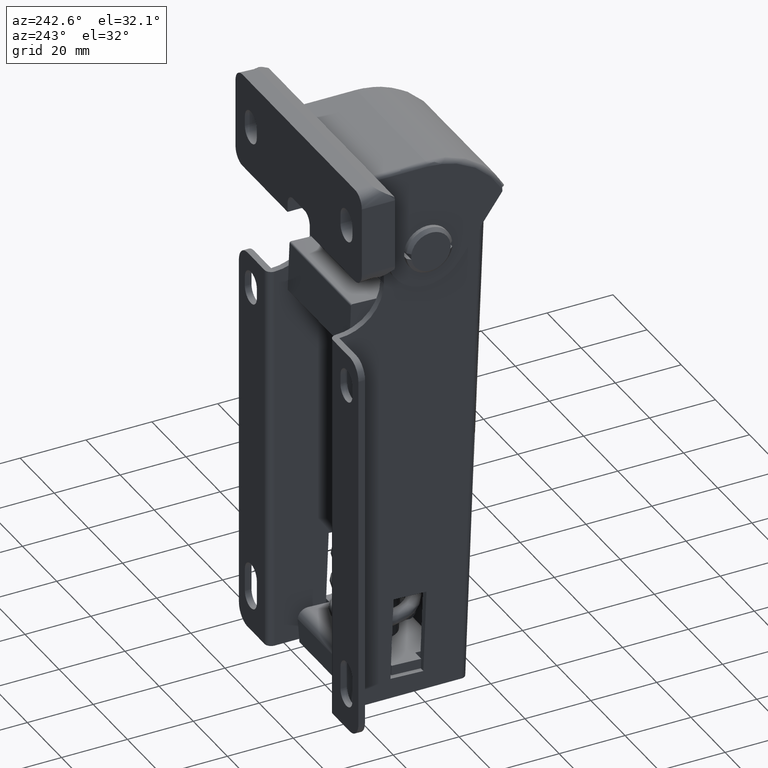
[diagram: clean part render]
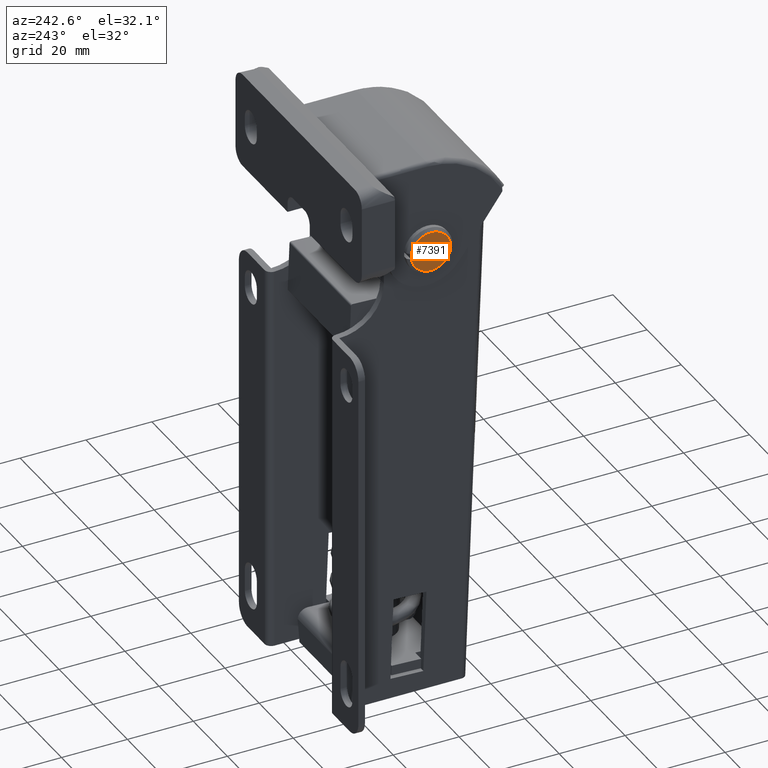
[diagram: same view with one face highlighted and labeled with its STEP entity id]
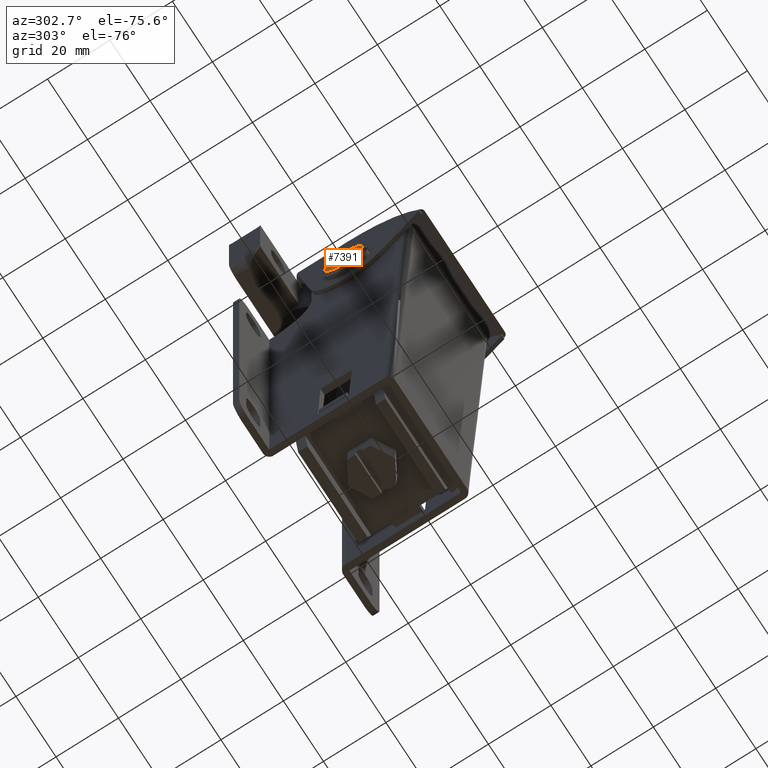
[diagram: same view with one face highlighted and labeled with its STEP entity id]
A machine part, auxiliary view. The second image highlights one B-rep face of the part: STEP entity #7391.
A second angle (auxiliary view) of the same face is appended — the face is thin or edge-on in the first view.
In plain terms, the highlighted face is a freeform B-spline surface patch.
Its self-contained STEP definition (entity closure, byte-faithful):
#7109=CARTESIAN_POINT('',(-23.500000000000000,-5.939462704611561,0.850005999999894));
#7110=VERTEX_POINT('',#7109);
#7147=CARTESIAN_POINT('',(-23.500000000000000,-5.939461053482820,-0.849975999999913));
#7148=VERTEX_POINT('',#7147);
#7210=CARTESIAN_POINT('',(-23.500000000000000,-5.939462704611561,0.850005999999894));
#7211=CARTESIAN_POINT('',(-23.499999999999996,-6.061102909468464,0.000015298664663));
#7212=CARTESIAN_POINT('',(-23.500000000000000,-5.939461053482820,-0.849975999999913));
#7220=(BOUNDED_CURVE()B_SPLINE_CURVE(2,(#7210,#7211,#7212),.UNSPECIFIED.,.F.,.U.)CURVE()GEOMETRIC_REPRESENTATION_ITEM()QUASI_UNIFORM_CURVE()RATIONAL_B_SPLINE_CURVE((1.0,0.989914623021119,1.0))REPRESENTATION_ITEM(''));
#7221=EDGE_CURVE('',#7110,#7148,#7220,.T.);
#7232=CARTESIAN_POINT('',(-23.500000000000000,5.939505946517170,-0.849975999999913));
#7233=VERTEX_POINT('',#7232);
#7290=CARTESIAN_POINT('',(-23.500000000000000,5.939505946517170,0.850005999999894));
#7291=VERTEX_POINT('',#7290);
#7335=CARTESIAN_POINT('',(-23.500000000000000,5.939505946517170,0.850005999999894));
#7336=CARTESIAN_POINT('',(-23.499999999999996,6.061147050964051,0.000015301035997));
#7337=CARTESIAN_POINT('',(-23.500000000000000,5.939505946517170,-0.849975999999913));
#7345=(BOUNDED_CURVE()B_SPLINE_CURVE(2,(#7335,#7336,#7337),.UNSPECIFIED.,.F.,.U.)CURVE()GEOMETRIC_REPRESENTATION_ITEM()QUASI_UNIFORM_CURVE()RATIONAL_B_SPLINE_CURVE((1.0,0.989914616914846,1.0))REPRESENTATION_ITEM(''));
#7346=EDGE_CURVE('',#7291,#7233,#7345,.T.);
#7352=CARTESIAN_POINT('',(-23.500000000000000,-6.599373849987222,-6.599399018591900));
#7353=CARTESIAN_POINT('',(-23.500000000000000,-6.599373849987222,6.599400058283703));
#7354=CARTESIAN_POINT('',(-23.500000000000000,6.599418168671624,-6.599399018591900));
#7355=CARTESIAN_POINT('',(-23.500000000000000,6.599418168671624,6.599400058283703));
#7356=B_SPLINE_SURFACE_WITH_KNOTS('',1,1,((#7352,#7354),(#7353,#7355)),.UNSPECIFIED.,.F.,.F.,.U.,(2,2),(2,2),(0.0,13.198799076875600),(0.0,13.198792018658850),.UNSPECIFIED.);
#7357=ORIENTED_EDGE('',*,*,#7346,.T.);
#7358=CARTESIAN_POINT('',(-23.500000000000000,5.939505946517170,-0.849975999999913));
#7359=CARTESIAN_POINT('',(-23.500000000000000,5.202507226308769,-5.999999096277485));
#7360=CARTESIAN_POINT('',(-23.500000000000000,0.000022385719879,-5.999999096277483));
#7361=CARTESIAN_POINT('',(-23.500000000000000,-5.202462454869013,-5.999999096277485));
#7362=CARTESIAN_POINT('',(-23.500000000000000,-5.939461053482820,-0.849975999999913));
#7370=(BOUNDED_CURVE()B_SPLINE_CURVE(2,(#7358,#7359,#7360,#7361,#7362),.UNSPECIFIED.,.F.,.U.)B_SPLINE_CURVE_WITH_KNOTS((3,2,3),(0.0,0.500000000000000,1.0),.UNSPECIFIED.)CURVE()GEOMETRIC_REPRESENTATION_ITEM()RATIONAL_B_SPLINE_CURVE((1.0,0.755533856715591,1.0,0.755533856715591,1.0))REPRESENTATION_ITEM(''));
#7371=EDGE_CURVE('',#7233,#7148,#7370,.T.);
#7372=ORIENTED_EDGE('',*,*,#7371,.T.);
#7373=ORIENTED_EDGE('',*,*,#7221,.F.);
#7374=CARTESIAN_POINT('',(-23.500000000000000,-5.939462704611561,0.850005999999894));
#7375=CARTESIAN_POINT('',(-23.500000000000004,-5.202441864538447,5.999999814104299));
#7376=CARTESIAN_POINT('',(-23.500000000000000,0.000021459766843,5.999999814104299));
#7377=CARTESIAN_POINT('',(-23.500000000000004,5.202484784072135,5.999999814104301));
#7378=CARTESIAN_POINT('',(-23.500000000000000,5.939505946517170,0.850005999999894));
#7386=(BOUNDED_CURVE()B_SPLINE_CURVE(2,(#7374,#7375,#7376,#7377,#7378),.UNSPECIFIED.,.F.,.U.)B_SPLINE_CURVE_WITH_KNOTS((3,2,3),(0.0,0.500000000000000,1.0),.UNSPECIFIED.)CURVE()GEOMETRIC_REPRESENTATION_ITEM()RATIONAL_B_SPLINE_CURVE((1.0,0.755535471585969,1.0,0.755535471585969,1.0))REPRESENTATION_ITEM(''));
#7387=EDGE_CURVE('',#7110,#7291,#7386,.T.);
#7388=ORIENTED_EDGE('',*,*,#7387,.T.);
#7389=EDGE_LOOP('',(#7357,#7372,#7373,#7388));
#7390=FACE_OUTER_BOUND('',#7389,.T.);
#7391=ADVANCED_FACE('',(#7390),#7356,.T.);